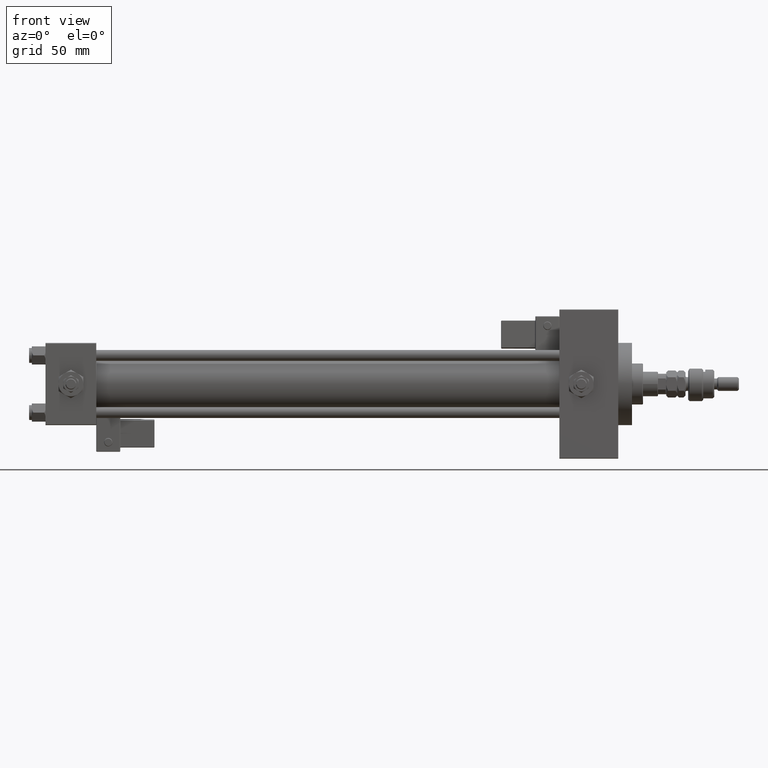
[diagram: clean part render]
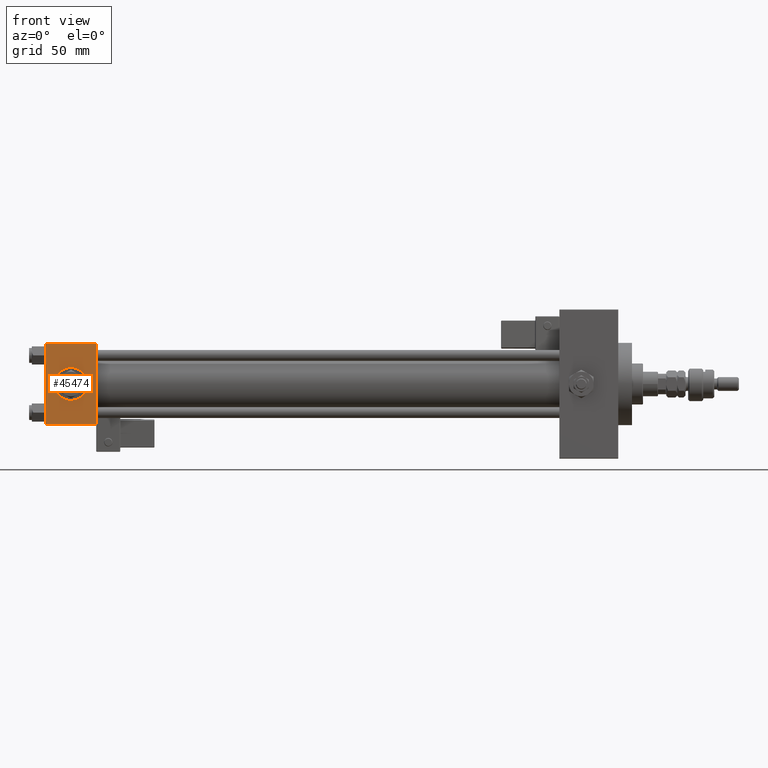
[diagram: same view with one face highlighted and labeled with its STEP entity id]
A machine part, front view. The second image highlights one B-rep face of the part: STEP entity #45474.
In plain terms, the highlighted planar face has unit normal (0, 1, 0).
Its self-contained STEP definition (entity closure, byte-faithful):
#735 = ORIENTED_EDGE ( 'NONE', *, *, #39428, .F. ) ;
#1109 = VERTEX_POINT ( 'NONE', #40165 ) ;
#1934 = ORIENTED_EDGE ( 'NONE', *, *, #33420, .F. ) ;
#5481 = CARTESIAN_POINT ( 'NONE',  ( 18.50000000000000000, -30.00000000000000000, 0.000000000000000000 ) ) ;
#6255 = EDGE_CURVE ( 'NONE', #53652, #12682, #48301, .T. ) ;
#7448 = CARTESIAN_POINT ( 'NONE',  ( 0.000000000000000000, -30.00000000000000000, -29.50000000000001776 ) ) ;
#8535 = CIRCLE ( 'NONE', #41827, 12.00000000000000178 ) ;
#12682 = VERTEX_POINT ( 'NONE', #26468 ) ;
#13526 = CARTESIAN_POINT ( 'NONE',  ( 0.000000000000000000, -30.00000000000000000, 29.99999999999999289 ) ) ;
#14250 = CARTESIAN_POINT ( 'NONE',  ( 37.00000000000000000, -30.00000000000000000, 29.49999999999999289 ) ) ;
#15358 = ORIENTED_EDGE ( 'NONE', *, *, #29840, .T. ) ;
#16310 = EDGE_CURVE ( 'NONE', #21839, #38849, #30529, .T. ) ;
#16807 = EDGE_LOOP ( 'NONE', ( #1934, #53501 ) ) ;
#16886 = CARTESIAN_POINT ( 'NONE',  ( 18.50000000000000000, -30.00000000000000000, -12.00000000000000178 ) ) ;
#16993 = ORIENTED_EDGE ( 'NONE', *, *, #6255, .T. ) ;
#17819 = ORIENTED_EDGE ( 'NONE', *, *, #53843, .T. ) ;
#19685 = CARTESIAN_POINT ( 'NONE',  ( 18.50000000000000000, -30.00000000000000000, 0.000000000000000000 ) ) ;
#19695 = FACE_BOUND ( 'NONE', #16807, .T. ) ;
#20223 = DIRECTION ( 'NONE',  ( 0.000000000000000000, -1.000000000000000000, -8.673617379884036705E-17 ) ) ;
#20839 = CARTESIAN_POINT ( 'NONE',  ( 37.00000000000000000, -30.00000000000000000, 29.99999999999999289 ) ) ;
#21839 = VERTEX_POINT ( 'NONE', #52706 ) ;
#21949 = DIRECTION ( 'NONE',  ( -1.000000000000000000, 0.000000000000000000, 0.000000000000000000 ) ) ;
#21988 = AXIS2_PLACEMENT_3D ( 'NONE', #36405, #53975, #53171 ) ;
#25847 = VECTOR ( 'NONE', #31287, 1000.000000000000000 ) ;
#26468 = CARTESIAN_POINT ( 'NONE',  ( 37.00000000000000000, -30.00000000000000000, -29.50000000000001776 ) ) ;
#27034 = AXIS2_PLACEMENT_3D ( 'NONE', #5481, #43616, #30192 ) ;
#28729 = PLANE ( 'NONE',  #21988 ) ;
#29840 = EDGE_CURVE ( 'NONE', #1109, #53652, #51122, .T. ) ;
#30192 = DIRECTION ( 'NONE',  ( 0.000000000000000000, 0.000000000000000000, -1.000000000000000000 ) ) ;
#30529 = CIRCLE ( 'NONE', #27034, 12.00000000000000178 ) ;
#30625 = VECTOR ( 'NONE', #45800, 1000.000000000000000 ) ;
#31287 = DIRECTION ( 'NONE',  ( 1.000000000000000000, 0.000000000000000000, 0.000000000000000000 ) ) ;
#33287 = DIRECTION ( 'NONE',  ( 0.000000000000000000, 0.000000000000000000, -1.000000000000000000 ) ) ;
#33420 = EDGE_CURVE ( 'NONE', #38849, #21839, #8535, .T. ) ;
#36405 = CARTESIAN_POINT ( 'NONE',  ( 37.00000000000000000, -30.00000000000000000, 29.99999999999999289 ) ) ;
#36464 = VECTOR ( 'NONE', #33287, 1000.000000000000000 ) ;
#38849 = VERTEX_POINT ( 'NONE', #16886 ) ;
#39428 = EDGE_CURVE ( 'NONE', #46039, #12682, #41388, .T. ) ;
#40165 = CARTESIAN_POINT ( 'NONE',  ( 0.000000000000000000, -30.00000000000000000, 29.49999999999999289 ) ) ;
#40244 = DIRECTION ( 'NONE',  ( 0.000000000000000000, 0.000000000000000000, -1.000000000000000000 ) ) ;
#41388 = LINE ( 'NONE', #20839, #30625 ) ;
#41827 = AXIS2_PLACEMENT_3D ( 'NONE', #19685, #20223, #40244 ) ;
#43616 = DIRECTION ( 'NONE',  ( 0.000000000000000000, -1.000000000000000000, -8.673617379884036705E-17 ) ) ;
#44657 = FACE_OUTER_BOUND ( 'NONE', #47564, .T. ) ;
#45474 = ADVANCED_FACE ( 'NONE', ( #19695, #44657 ), #28729, .F. ) ;
#45800 = DIRECTION ( 'NONE',  ( 0.000000000000000000, 0.000000000000000000, -1.000000000000000000 ) ) ;
#46039 = VERTEX_POINT ( 'NONE', #49662 ) ;
#47564 = EDGE_LOOP ( 'NONE', ( #15358, #16993, #735, #17819 ) ) ;
#48301 = LINE ( 'NONE', #52421, #25847 ) ;
#49662 = CARTESIAN_POINT ( 'NONE',  ( 37.00000000000000000, -30.00000000000000000, 29.49999999999999289 ) ) ;
#51122 = LINE ( 'NONE', #13526, #36464 ) ;
#51850 = LINE ( 'NONE', #14250, #52020 ) ;
#52020 = VECTOR ( 'NONE', #21949, 1000.000000000000000 ) ;
#52421 = CARTESIAN_POINT ( 'NONE',  ( 37.00000000000000000, -30.00000000000000000, -29.50000000000001776 ) ) ;
#52706 = CARTESIAN_POINT ( 'NONE',  ( 18.50000000000000000, -30.00000000000000000, 12.00000000000000178 ) ) ;
#53171 = DIRECTION ( 'NONE',  ( 0.000000000000000000, -0.000000000000000000, 1.000000000000000000 ) ) ;
#53501 = ORIENTED_EDGE ( 'NONE', *, *, #16310, .F. ) ;
#53652 = VERTEX_POINT ( 'NONE', #7448 ) ;
#53843 = EDGE_CURVE ( 'NONE', #46039, #1109, #51850, .T. ) ;
#53975 = DIRECTION ( 'NONE',  ( -0.000000000000000000, 1.000000000000000000, 0.000000000000000000 ) ) ;